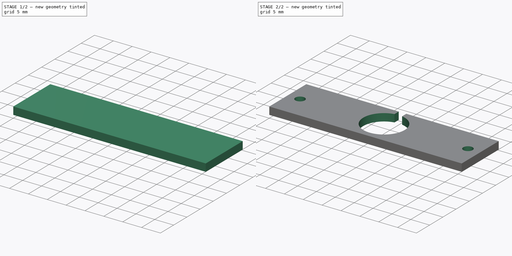
[diagram: build sequence overview — one tinted view per stage of 2, left to right]
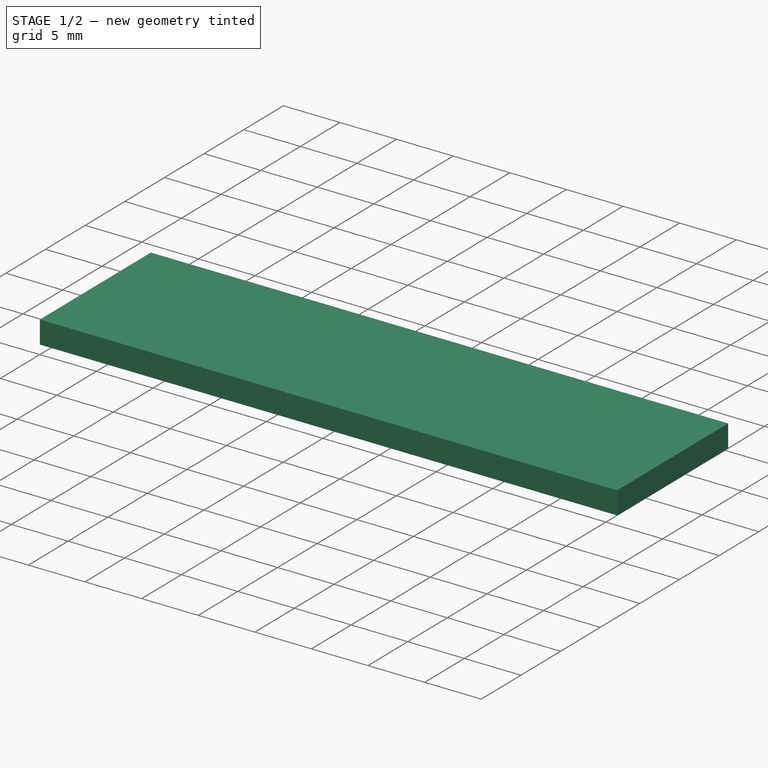
[diagram: stage 1 of 2 — iso view after this stage's code; geometry added in this stage tinted green]
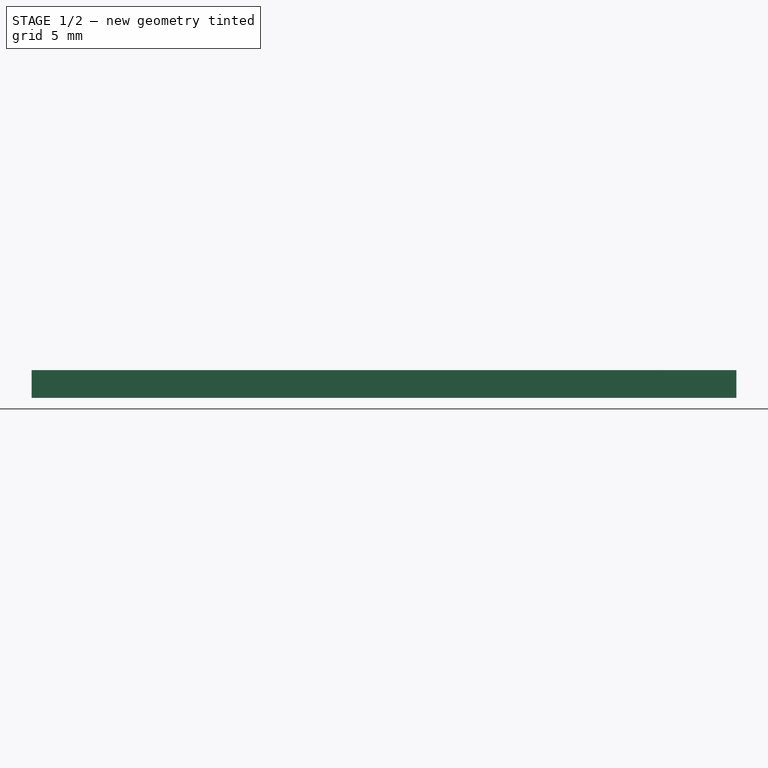
[diagram: stage 1 of 2 — front view after this stage's code; geometry added in this stage tinted green]
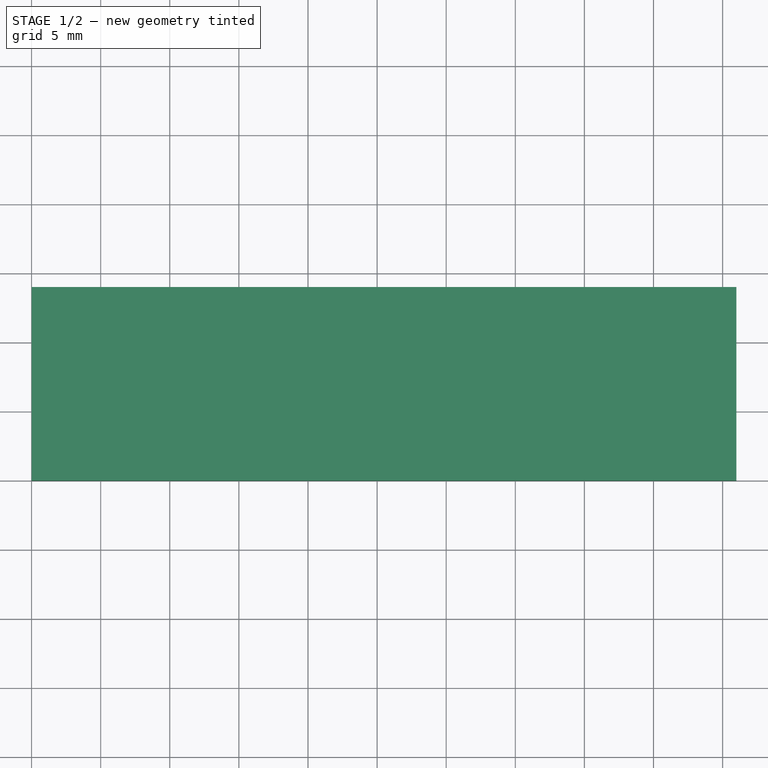
[diagram: stage 1 of 2 — top view after this stage's code; geometry added in this stage tinted green]
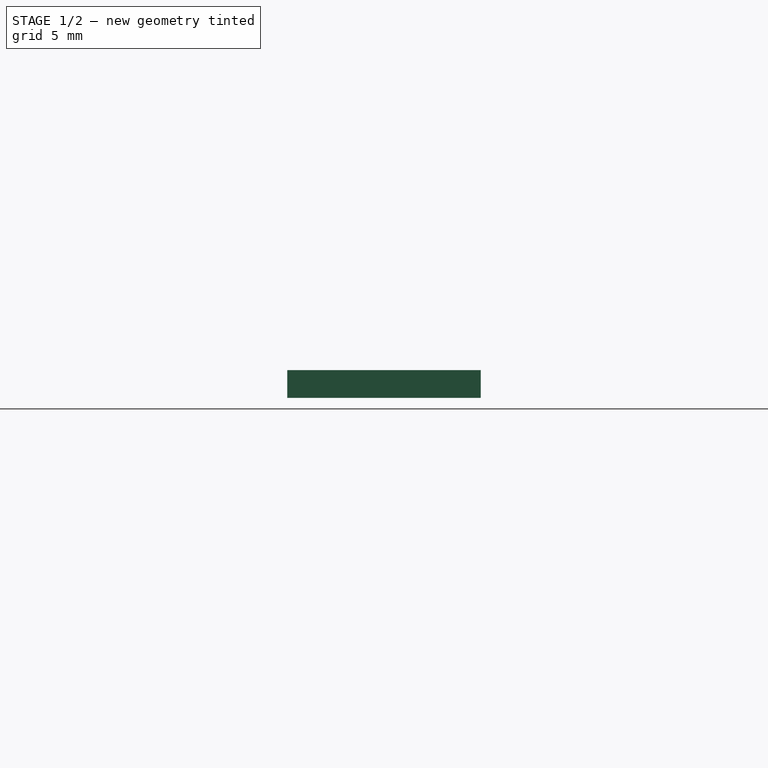
[diagram: stage 1 of 2 — right view after this stage's code; geometry added in this stage tinted green]
FCSTD DOCUMENT  (FreeCAD 0.21R33694 (Git))
Label: FlostSwitchSlotV2
License: All rights reserved
LicenseURL: https://en.wikipedia.org/wiki/All_rights_reserved
objects: Sketcher::SketchObject×2, PartDesign::Pad×1, PartDesign::Pocket×1, PartDesign::Body×1
note: 7 computed .brp shape members not serialized (recipe doc carries the construction recipe); baked Part::Feature solids carry a one-line shape summary decoded from their .brp

FEATURE [Sketcher::SketchObject] Sketch
  FullyConstrained = true
  MapMode = 5
  Support = -> [XY_Plane]
  sketch-geometry (4):
    g0: LineSegment StartX=0 StartY=0 StartZ=0 EndX=51 EndY=0 EndZ=0
    g1: LineSegment StartX=51 StartY=0 StartZ=0 EndX=51 EndY=14 EndZ=0
    g2: LineSegment StartX=51 StartY=14 StartZ=0 EndX=0 EndY=14 EndZ=0
    g3: LineSegment StartX=0 StartY=14 StartZ=0 EndX=0 EndY=0 EndZ=0
  constraints (11):
    c: Coincident(g0,g1)
    c: Coincident(g1,g2)
    c: Coincident(g2,g3)
    c: Coincident(g3,g0)
    c: Horizontal(g0)
    c: Horizontal(g2)
    c: Vertical(g1)
    c: Vertical(g3)
    c: Coincident(g0,g-1)
    c: DistanceY(g1,g1) = 14
    c: DistanceX(g2,g2) = 51
FEATURE [PartDesign::Pad] Pad
  Direction = (0,0,1)
  Length = 2
  Length2 = 10
  Profile = -> Sketch
  ReferenceAxis = -> Sketch [N_Axis]
  Type = 0
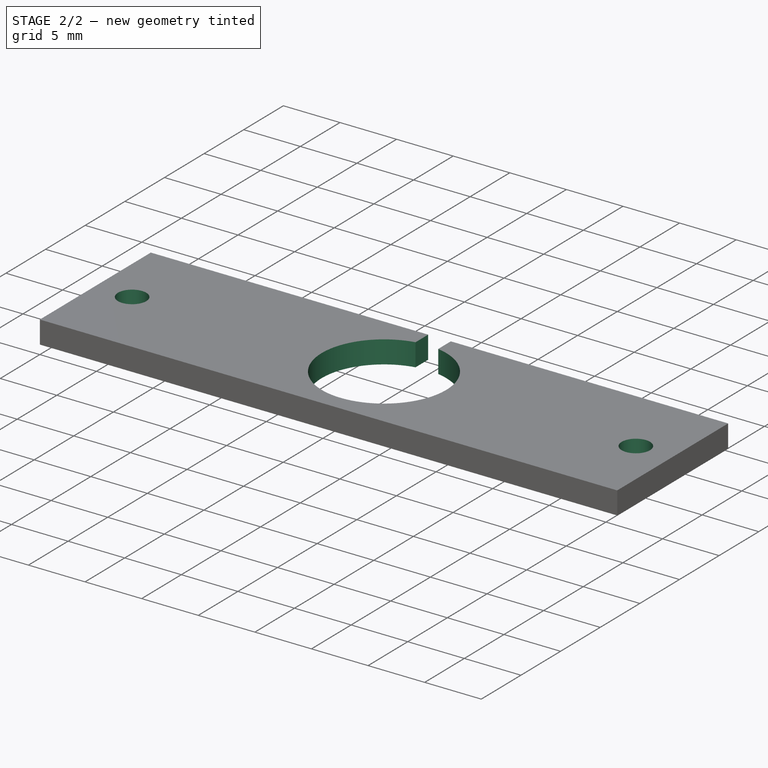
[diagram: stage 2 of 2 — iso view after this stage's code; geometry added in this stage tinted green]
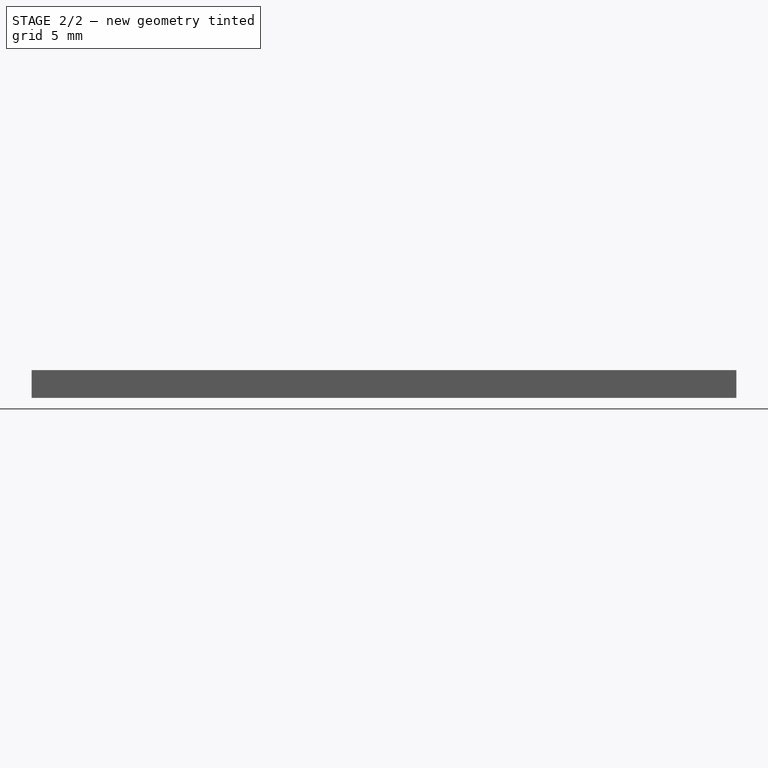
[diagram: stage 2 of 2 — front view after this stage's code; geometry added in this stage tinted green]
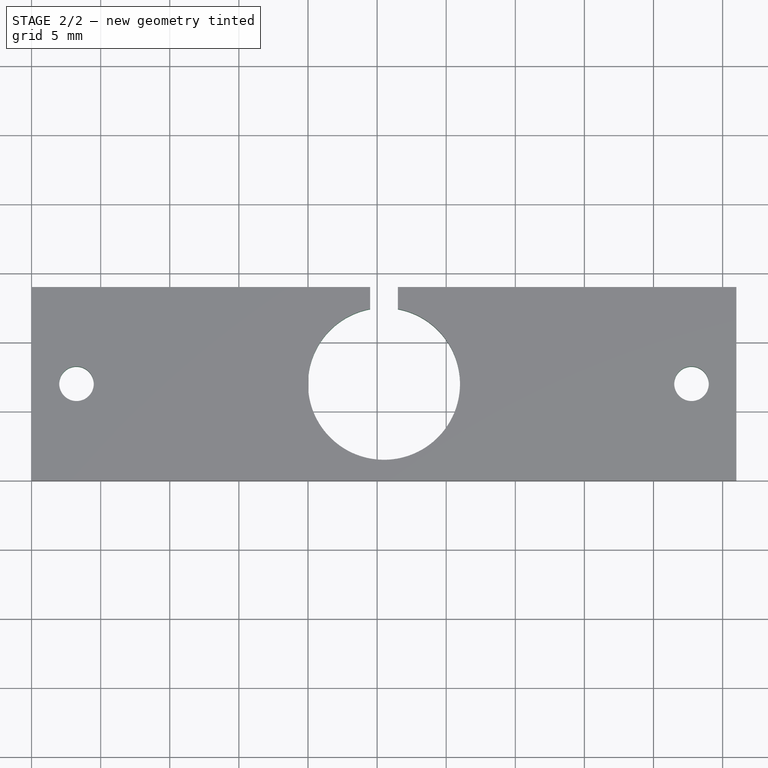
[diagram: stage 2 of 2 — top view after this stage's code; geometry added in this stage tinted green]
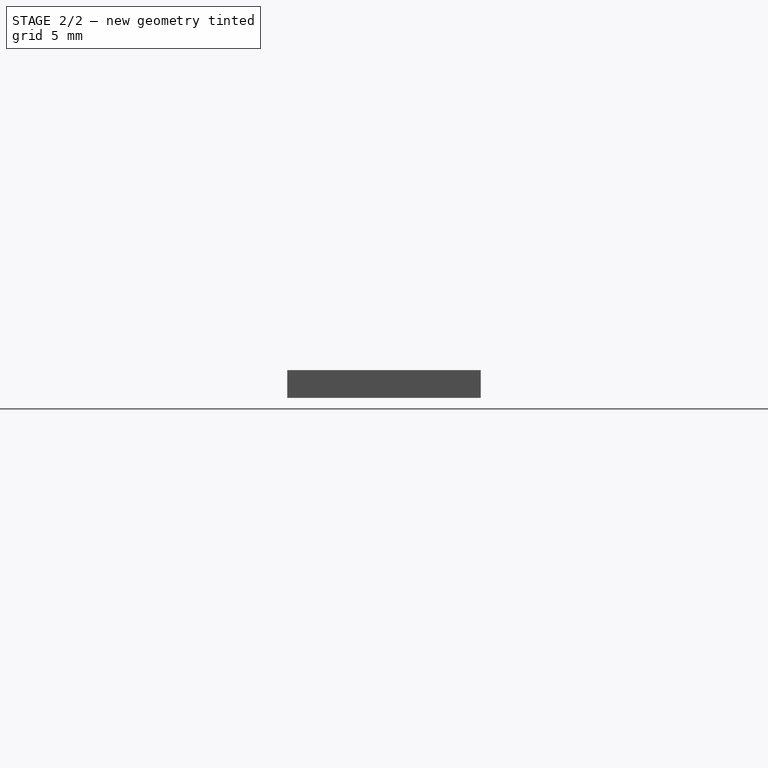
[diagram: stage 2 of 2 — right view after this stage's code; geometry added in this stage tinted green]
FEATURE [Sketcher::SketchObject] Sketch001
  FullyConstrained = true
  MapMode = 5
  Placement = pos=(0,0,2) rot=(0,0,1;0rad)
  Support = -> [Pad]
  sketch-geometry (10):
    g0: GeomPoint X=0 Y=7 Z=0
    g1: Circle CenterX=3.25 CenterY=7 CenterZ=0 NormalX=0 NormalY=0 NormalZ=1 AngleXU=0 Radius=1.25
    g2: Circle CenterX=47.75 CenterY=7 CenterZ=0 NormalX=0 NormalY=0 NormalZ=1 AngleXU=0 Radius=1.25
    g3: GeomPoint X=51 Y=7 Z=0
    g4: LineSegment StartX=24.5 StartY=12.4083 StartZ=0 EndX=24.5 EndY=14 EndZ=0
    g5: LineSegment StartX=24.5 StartY=14 StartZ=0 EndX=26.5 EndY=14 EndZ=0
    g6: LineSegment StartX=26.5 StartY=14 StartZ=0 EndX=26.5 EndY=12.4083 EndZ=0
    g7: GeomPoint X=25.5 Y=12.4083 Z=0
    g8: GeomPoint X=25.5 Y=7 Z=0
    g9: ArcOfCircle CenterX=25.5 CenterY=7 CenterZ=0 NormalX=0 NormalY=0 NormalZ=1 AngleXU=0 Radius=5.5 StartAngle=1.75363 EndAngle=7.67115
  constraints (26):
    c: PointOnObject(g0,g-2)
    c: DistanceY(g-1,g0) = 7
    c: Diameter(g1) = 2.5
    c: Diameter(g2) = 2.5
    c: DistanceY(g1,g0) = 0
    c: DistanceY(g2,g0) = 0
    c: DistanceX(g0,g1) = 3.25
    c: DistanceY(g-1,g3) = 7
    c: DistanceX(g-1,g3) = 51
    c: DistanceX(g2,g3) = 3.25
    c: Vertical(g4)
    c: Coincident(g4,g5)
    c: Horizontal(g5)
    c: Coincident(g5,g6)
    c: Vertical(g6)
    c: DistanceX(g5,g5) = 2
    c: DistanceY(g4,g6) = 0
    c: DistanceX(g7,g6) = 1
    c: DistanceY(g7,g6) = 0
    c: Coincident(g9,g8)
    c: Coincident(g9,g6)
    c: Coincident(g9,g4)
    c: Radius(g9) = 5.5
    c: DistanceY(g0,g9) = 0
    c: DistanceX(g0,g9) = 25.5
    c: DistanceY(g0,g4) = 7
FEATURE [PartDesign::Pocket] Pocket
  BaseFeature = -> Pad
  Direction = (0,0,-1)
  Length = 5
  Length2 = 5
  Profile = -> Sketch001
  ReferenceAxis = -> Sketch001 [N_Axis]
  Type = 0
FEATURE [PartDesign::Body] Body
  Group = -> [Sketch,Pad,Sketch001,Pocket]
  Origin = -> Origin
  Tip = -> Pocket
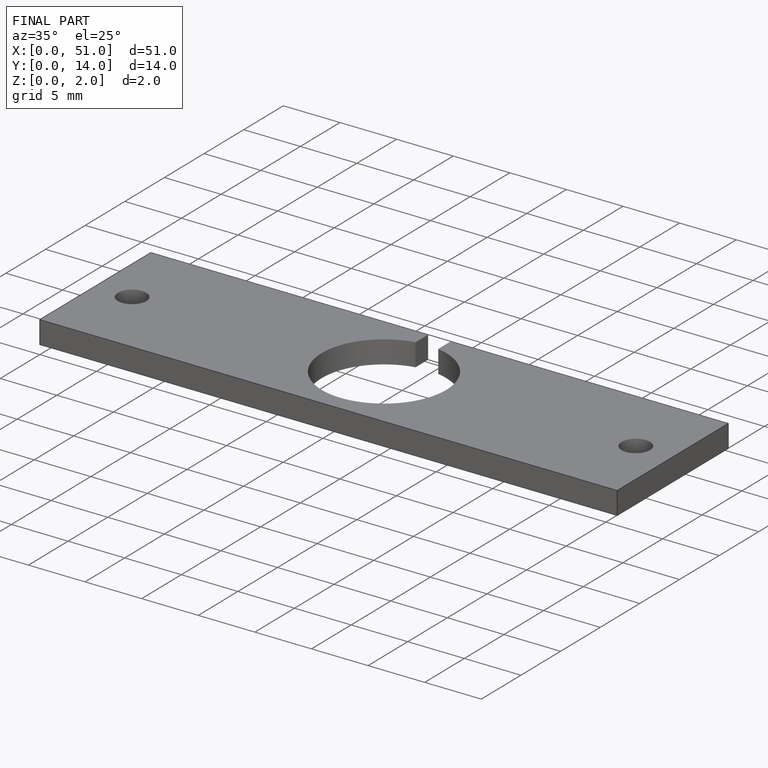
[diagram: finished part — iso view with bounding-box wireframe]
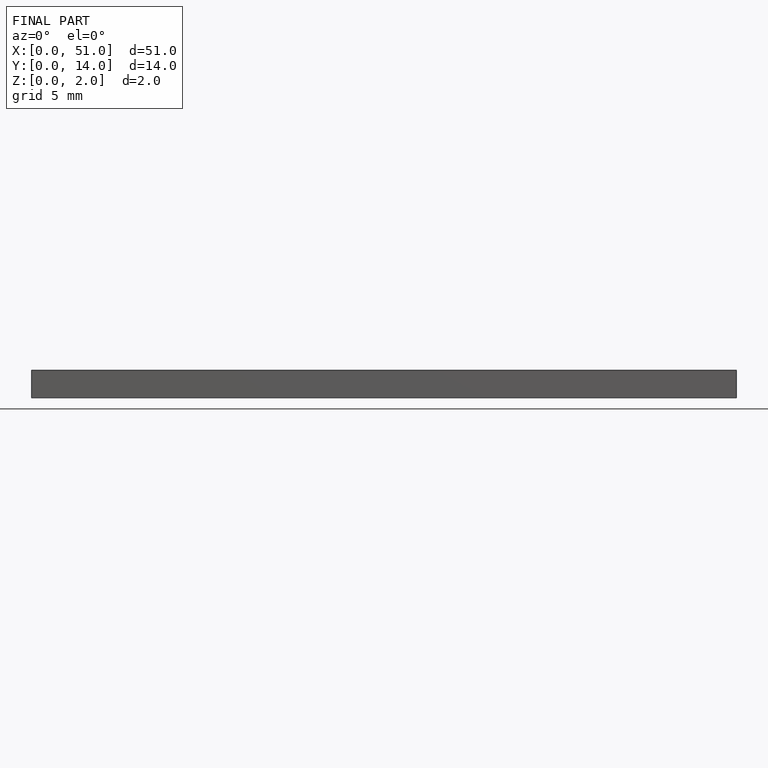
[diagram: finished part — front view with bounding-box wireframe]
